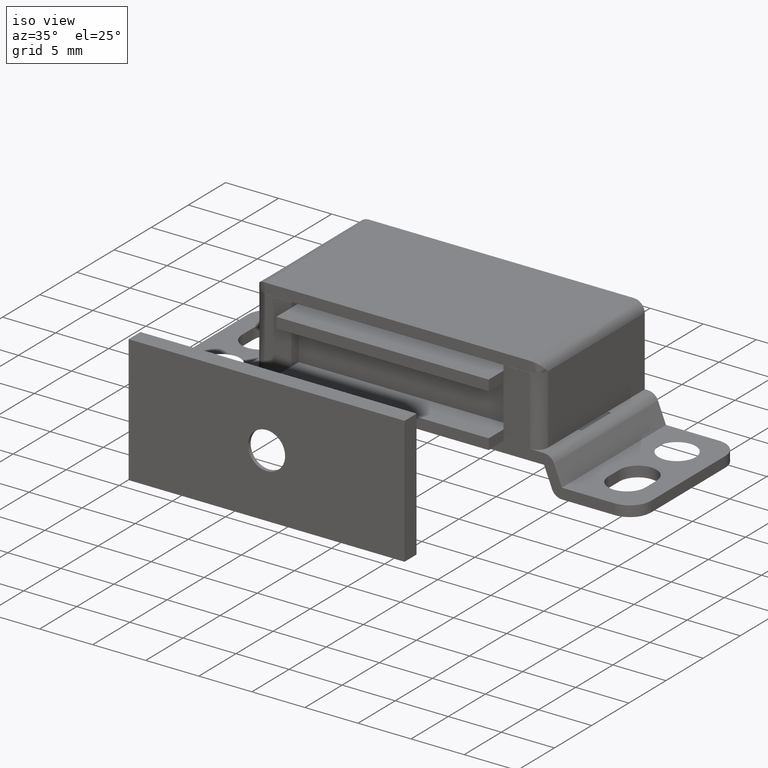
[diagram: clean part render]
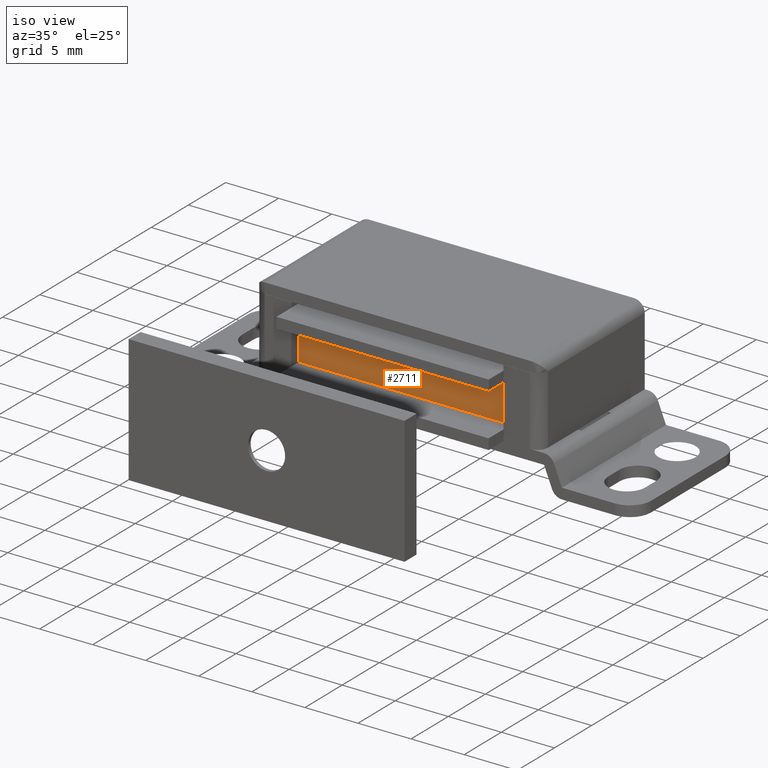
[diagram: same view with one face highlighted and labeled with its STEP entity id]
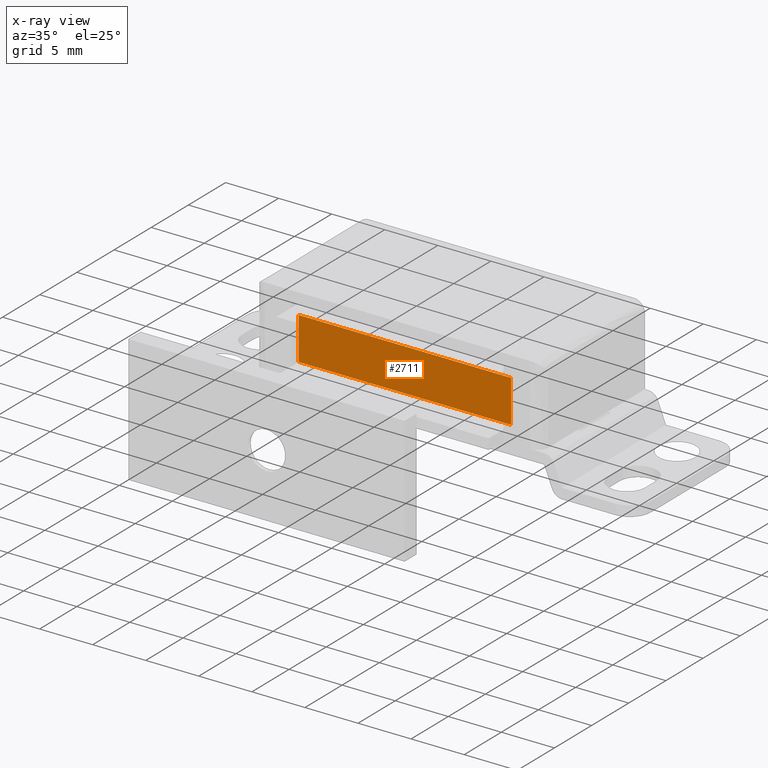
[diagram: x-ray of the same camera — body ghosted, the highlighted face saturated]
A machine part, iso view. The second image highlights one B-rep face of the part: STEP entity #2711.
The next image is the same camera in x-ray: the body ghosted, the highlighted face saturated — about 0% of this face is hidden behind the body in this view.
In plain terms, the highlighted face is a freeform B-spline surface patch.
Its self-contained STEP definition (entity closure, byte-faithful):
#2625=CARTESIAN_POINT('',(10.000004000000001,-13.0,4.500000000000000));
#2626=VERTEX_POINT('',#2625);
#2641=CARTESIAN_POINT('',(10.000004000000001,-13.0,8.500000000000000));
#2642=VERTEX_POINT('',#2641);
#2648=CARTESIAN_POINT('',(10.000004000000001,-13.0,8.500000000000000));
#2649=CARTESIAN_POINT('',(10.000004000000001,-13.0,4.500000000000000));
#2650=QUASI_UNIFORM_CURVE('',1,(#2648,#2649),.UNSPECIFIED.,.F.,.U.);
#2651=EDGE_CURVE('',#2642,#2626,#2650,.T.);
#2661=CARTESIAN_POINT('',(-10.0,-13.0,4.500000000000000));
#2662=VERTEX_POINT('',#2661);
#2670=CARTESIAN_POINT('',(-10.0,-13.0,8.500000000000000));
#2671=VERTEX_POINT('',#2670);
#2672=CARTESIAN_POINT('',(-10.0,-13.0,8.500000000000000));
#2673=CARTESIAN_POINT('',(-10.0,-13.0,4.500000000000000));
#2674=QUASI_UNIFORM_CURVE('',1,(#2672,#2673),.UNSPECIFIED.,.F.,.U.);
#2675=EDGE_CURVE('',#2671,#2662,#2674,.T.);
#2692=CARTESIAN_POINT('',(-10.999000161036109,-13.0,8.699799992247225));
#2693=CARTESIAN_POINT('',(-10.999000161036109,-13.0,4.300199900464415));
#2694=CARTESIAN_POINT('',(10.999004697478020,-13.0,8.699799992247225));
#2695=CARTESIAN_POINT('',(10.999004697478020,-13.0,4.300199900464415));
#2696=B_SPLINE_SURFACE_WITH_KNOTS('',1,1,((#2692,#2694),(#2693,#2695)),.UNSPECIFIED.,.F.,.F.,.U.,(2,2),(2,2),(0.0,4.399600091782810),(0.0,21.998004858514140),.UNSPECIFIED.);
#2697=ORIENTED_EDGE('',*,*,#2651,.F.);
#2698=CARTESIAN_POINT('',(-10.0,-13.0,8.500000000000000));
#2699=CARTESIAN_POINT('',(10.000004000000001,-13.0,8.500000000000000));
#2700=QUASI_UNIFORM_CURVE('',1,(#2698,#2699),.UNSPECIFIED.,.F.,.U.);
#2701=EDGE_CURVE('',#2671,#2642,#2700,.T.);
#2702=ORIENTED_EDGE('',*,*,#2701,.F.);
#2703=ORIENTED_EDGE('',*,*,#2675,.T.);
#2704=CARTESIAN_POINT('',(-10.0,-13.0,4.500000000000000));
#2705=CARTESIAN_POINT('',(10.000004000000001,-13.0,4.500000000000000));
#2706=QUASI_UNIFORM_CURVE('',1,(#2704,#2705),.UNSPECIFIED.,.F.,.U.);
#2707=EDGE_CURVE('',#2662,#2626,#2706,.T.);
#2708=ORIENTED_EDGE('',*,*,#2707,.T.);
#2709=EDGE_LOOP('',(#2697,#2702,#2703,#2708));
#2710=FACE_OUTER_BOUND('',#2709,.T.);
#2711=ADVANCED_FACE('',(#2710),#2696,.T.);